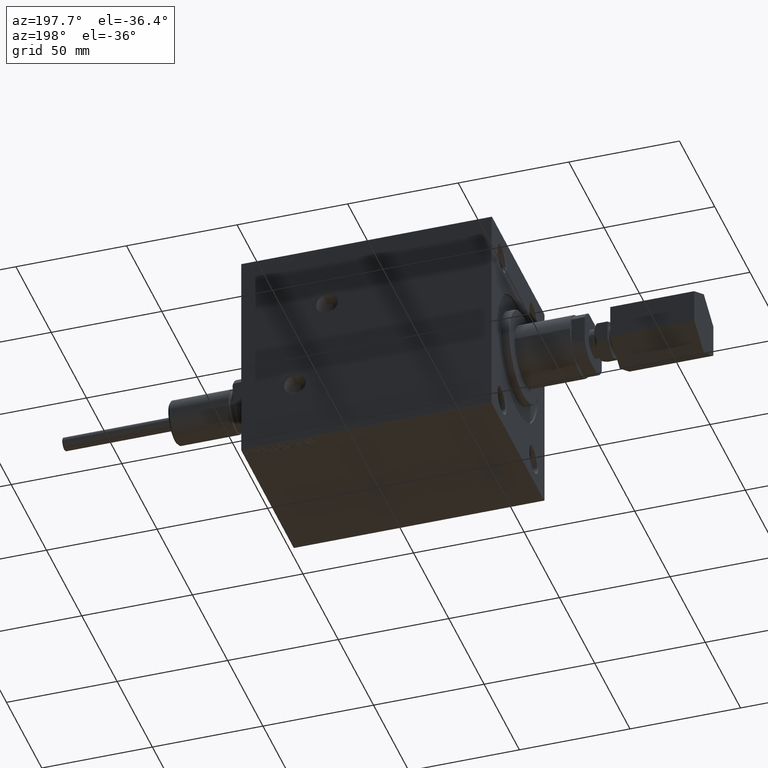
[diagram: clean part render]
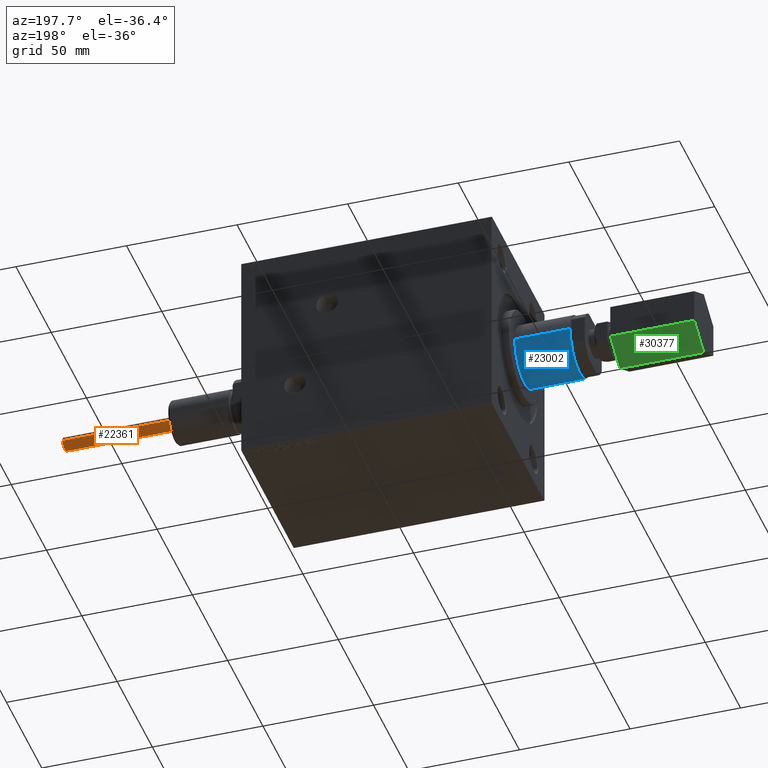
[diagram: same view with three faces highlighted in distinct colors, each labeled with its STEP entity id]
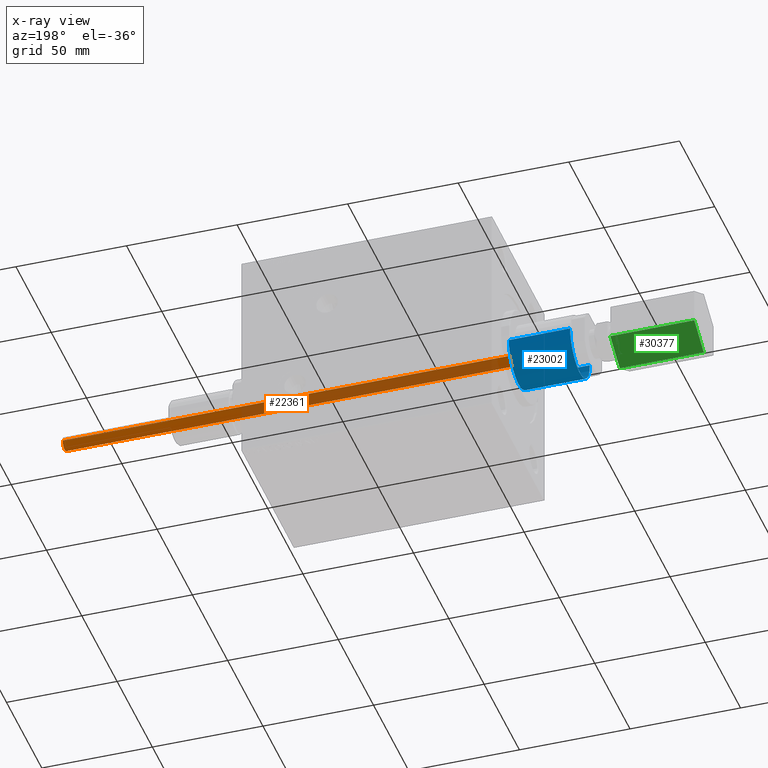
[diagram: x-ray of the same camera — body ghosted, the three highlighted faces saturated]
A machine part, auxiliary view with three faces highlighted in distinct colors.
The next image is the same camera in x-ray (body ghosted, the three faces saturated) — at least one of them is partly hidden behind the body in this view.
Their STEP definitions:

[orange] entity #22361 — the highlighted cylindrical surface (edge-blend (fillet) strip) has radius 3 mm, axis along (-1, 0, 0).
#97 = CARTESIAN_POINT ( 'NONE',  ( 0.000000000000000000, 0.000000000000000000, -2.999999999999999556 ) ) ;
#541 = DIRECTION ( 'NONE',  ( 1.000000000000000000, -0.000000000000000000, -0.000000000000000000 ) ) ;
#1107 = LINE ( 'NONE', #33809, #3805 ) ;
#2545 = ORIENTED_EDGE ( 'NONE', *, *, #44125, .T. ) ;
#2677 = AXIS2_PLACEMENT_3D ( 'NONE', #23001, #37663, #3782 ) ;
#3064 = AXIS2_PLACEMENT_3D ( 'NONE', #37611, #12388, #19372 ) ;
#3198 = CIRCLE ( 'NONE', #42363, 2.999999999999999556 ) ;
#3782 = DIRECTION ( 'NONE',  ( 0.000000000000000000, 0.000000000000000000, -1.000000000000000000 ) ) ;
#3805 = VECTOR ( 'NONE', #4961, 1000.000000000000000 ) ;
#4961 = DIRECTION ( 'NONE',  ( 1.000000000000000000, -0.000000000000000000, -0.000000000000000000 ) ) ;
#6970 = CARTESIAN_POINT ( 'NONE',  ( -204.9000000000000341, 0.000000000000000000, -2.999999999999999556 ) ) ;
#7798 = VERTEX_POINT ( 'NONE', #6970 ) ;
#8085 = EDGE_CURVE ( 'NONE', #7798, #16380, #1107, .T. ) ;
#8434 = ORIENTED_EDGE ( 'NONE', *, *, #8085, .F. ) ;
#8879 = ORIENTED_EDGE ( 'NONE', *, *, #9750, .T. ) ;
#9750 = EDGE_CURVE ( 'NONE', #7798, #10255, #46056, .T. ) ;
#9816 = DIRECTION ( 'NONE',  ( -1.000000000000000000, 0.000000000000000000, 0.000000000000000000 ) ) ;
#10255 = VERTEX_POINT ( 'NONE', #18776 ) ;
#10798 = VECTOR ( 'NONE', #541, 1000.000000000000000 ) ;
#12388 = DIRECTION ( 'NONE',  ( 1.000000000000000000, 0.000000000000000000, 0.000000000000000000 ) ) ;
#12530 = CARTESIAN_POINT ( 'NONE',  ( 0.000000000000000000, 3.673940397442059375E-16, 2.999999999999999556 ) ) ;
#12706 = CARTESIAN_POINT ( 'NONE',  ( 0.000000000000000000, 0.000000000000000000, 0.000000000000000000 ) ) ;
#14133 = EDGE_CURVE ( 'NONE', #38783, #16380, #3198, .T. ) ;
#16380 = VERTEX_POINT ( 'NONE', #97 ) ;
#18776 = CARTESIAN_POINT ( 'NONE',  ( -204.9000000000000341, 3.673940397442059375E-16, 2.999999999999999556 ) ) ;
#19372 = DIRECTION ( 'NONE',  ( 0.000000000000000000, 0.000000000000000000, 1.000000000000000000 ) ) ;
#19424 = CYLINDRICAL_SURFACE ( 'NONE', #2677, 2.999999999999999556 ) ;
#22361 = ADVANCED_FACE ( 'NONE', ( #44641 ), #19424, .T. ) ;
#22661 = CARTESIAN_POINT ( 'NONE',  ( -205.1999999999999886, 3.673940397442059375E-16, 2.999999999999999556 ) ) ;
#23001 = CARTESIAN_POINT ( 'NONE',  ( -205.1999999999999886, 0.000000000000000000, 0.000000000000000000 ) ) ;
#25439 = ORIENTED_EDGE ( 'NONE', *, *, #14133, .T. ) ;
#33809 = CARTESIAN_POINT ( 'NONE',  ( -205.1999999999999886, 0.000000000000000000, -2.999999999999999556 ) ) ;
#33949 = LINE ( 'NONE', #22661, #10798 ) ;
#35041 = DIRECTION ( 'NONE',  ( 0.000000000000000000, 0.000000000000000000, 1.000000000000000000 ) ) ;
#36709 = EDGE_LOOP ( 'NONE', ( #8879, #2545, #25439, #8434 ) ) ;
#37611 = CARTESIAN_POINT ( 'NONE',  ( -204.9000000000000341, 0.000000000000000000, 0.000000000000000000 ) ) ;
#37663 = DIRECTION ( 'NONE',  ( 1.000000000000000000, -0.000000000000000000, -0.000000000000000000 ) ) ;
#38783 = VERTEX_POINT ( 'NONE', #12530 ) ;
#42363 = AXIS2_PLACEMENT_3D ( 'NONE', #12706, #9816, #35041 ) ;
#44125 = EDGE_CURVE ( 'NONE', #10255, #38783, #33949, .T. ) ;
#44641 = FACE_OUTER_BOUND ( 'NONE', #36709, .T. ) ;
#46056 = CIRCLE ( 'NONE', #3064, 2.999999999999999556 ) ;

[blue] entity #23002 — the highlighted cylindrical surface (edge-blend (fillet) strip) has radius 14 mm, axis along (1, 0, 0).
#1603 = DIRECTION ( 'NONE',  ( -1.000000000000000000, -0.000000000000000000, -0.000000000000000000 ) ) ;
#2542 = DIRECTION ( 'NONE',  ( 0.000000000000000000, 0.000000000000000000, -1.000000000000000000 ) ) ;
#3013 = DIRECTION ( 'NONE',  ( 1.000000000000000000, 0.000000000000000000, 0.000000000000000000 ) ) ;
#3467 = FACE_OUTER_BOUND ( 'NONE', #27600, .T. ) ;
#3563 = CARTESIAN_POINT ( 'NONE',  ( 28.00000000000000000, 1.714505518806294441E-15, -13.99999999999999822 ) ) ;
#3601 = VERTEX_POINT ( 'NONE', #6338 ) ;
#6086 = VECTOR ( 'NONE', #33995, 1000.000000000000000 ) ;
#6338 = CARTESIAN_POINT ( 'NONE',  ( 28.00000000000000000, 0.000000000000000000, 13.99999999999999822 ) ) ;
#6994 = EDGE_CURVE ( 'NONE', #43885, #3601, #13790, .T. ) ;
#13658 = CARTESIAN_POINT ( 'NONE',  ( 0.3000000000000120348, 0.000000000000000000, 0.000000000000000000 ) ) ;
#13790 = CIRCLE ( 'NONE', #22958, 13.99999999999999822 ) ;
#15165 = CIRCLE ( 'NONE', #42026, 13.99999999999999822 ) ;
#16977 = CARTESIAN_POINT ( 'NONE',  ( 28.00000000000000000, 0.000000000000000000, 0.000000000000000000 ) ) ;
#17524 = ORIENTED_EDGE ( 'NONE', *, *, #42649, .F. ) ;
#17750 = CARTESIAN_POINT ( 'NONE',  ( 0.3000000000000120348, 0.000000000000000000, 13.99999999999999822 ) ) ;
#18537 = CARTESIAN_POINT ( 'NONE',  ( 28.00000000000000000, 0.000000000000000000, 13.99999999999999822 ) ) ;
#19237 = VERTEX_POINT ( 'NONE', #19919 ) ;
#19366 = CARTESIAN_POINT ( 'NONE',  ( 28.00000000000000000, 1.714505518806294441E-15, -13.99999999999999822 ) ) ;
#19919 = CARTESIAN_POINT ( 'NONE',  ( 0.3000000000000120348, 1.714505518806294441E-15, -13.99999999999999822 ) ) ;
#19960 = VECTOR ( 'NONE', #1603, 1000.000000000000000 ) ;
#21210 = VERTEX_POINT ( 'NONE', #17750 ) ;
#21277 = CARTESIAN_POINT ( 'NONE',  ( 28.00000000000000000, 0.000000000000000000, 0.000000000000000000 ) ) ;
#22943 = LINE ( 'NONE', #19366, #6086 ) ;
#22958 = AXIS2_PLACEMENT_3D ( 'NONE', #16977, #3013, #2542 ) ;
#23002 = ADVANCED_FACE ( 'NONE', ( #3467 ), #31847, .T. ) ;
#23254 = LINE ( 'NONE', #18537, #19960 ) ;
#24935 = DIRECTION ( 'NONE',  ( 1.000000000000000000, -0.000000000000000000, -0.000000000000000000 ) ) ;
#27600 = EDGE_LOOP ( 'NONE', ( #45445, #43402, #42343, #17524 ) ) ;
#31847 = CYLINDRICAL_SURFACE ( 'NONE', #34923, 13.99999999999999822 ) ;
#32571 = EDGE_CURVE ( 'NONE', #19237, #21210, #15165, .T. ) ;
#33995 = DIRECTION ( 'NONE',  ( -1.000000000000000000, -0.000000000000000000, -0.000000000000000000 ) ) ;
#34923 = AXIS2_PLACEMENT_3D ( 'NONE', #21277, #39531, #47455 ) ;
#39531 = DIRECTION ( 'NONE',  ( -1.000000000000000000, -0.000000000000000000, -0.000000000000000000 ) ) ;
#39586 = DIRECTION ( 'NONE',  ( 0.000000000000000000, 0.000000000000000000, -1.000000000000000000 ) ) ;
#42026 = AXIS2_PLACEMENT_3D ( 'NONE', #13658, #24935, #39586 ) ;
#42074 = EDGE_CURVE ( 'NONE', #43885, #19237, #22943, .T. ) ;
#42343 = ORIENTED_EDGE ( 'NONE', *, *, #32571, .T. ) ;
#42649 = EDGE_CURVE ( 'NONE', #3601, #21210, #23254, .T. ) ;
#43402 = ORIENTED_EDGE ( 'NONE', *, *, #42074, .T. ) ;
#43885 = VERTEX_POINT ( 'NONE', #3563 ) ;
#45445 = ORIENTED_EDGE ( 'NONE', *, *, #6994, .F. ) ;
#47455 = DIRECTION ( 'NONE',  ( 0.000000000000000000, 0.000000000000000000, 1.000000000000000000 ) ) ;

[green] entity #30377 — the highlighted planar face has unit normal (0, -0.5, 0.866).
#742 = VERTEX_POINT ( 'NONE', #19899 ) ;
#1028 = EDGE_CURVE ( 'NONE', #742, #7936, #40227, .T. ) ;
#2106 = VECTOR ( 'NONE', #38881, 1000.000000000000114 ) ;
#2680 = EDGE_CURVE ( 'NONE', #742, #46650, #25931, .T. ) ;
#4007 = EDGE_LOOP ( 'NONE', ( #15515, #14207, #43289, #26015 ) ) ;
#6002 = VERTEX_POINT ( 'NONE', #26989 ) ;
#6374 = DIRECTION ( 'NONE',  ( -1.000000000000000000, -0.000000000000000000, -0.000000000000000000 ) ) ;
#7056 = DIRECTION ( 'NONE',  ( -1.000000000000000000, -0.000000000000000000, -0.000000000000000000 ) ) ;
#7936 = VERTEX_POINT ( 'NONE', #18990 ) ;
#8238 = VECTOR ( 'NONE', #40354, 1000.000000000000114 ) ;
#8852 = CARTESIAN_POINT ( 'NONE',  ( 46.00000000000000711, 7.794228634059952476, -13.49999999999999822 ) ) ;
#11261 = VECTOR ( 'NONE', #6374, 1000.000000000000000 ) ;
#13313 = DIRECTION ( 'NONE',  ( 0.000000000000000000, -0.4999999999999997224, -0.8660254037844388186 ) ) ;
#14207 = ORIENTED_EDGE ( 'NONE', *, *, #29974, .F. ) ;
#15515 = ORIENTED_EDGE ( 'NONE', *, *, #32399, .T. ) ;
#16920 = FACE_OUTER_BOUND ( 'NONE', #4007, .T. ) ;
#18990 = CARTESIAN_POINT ( 'NONE',  ( 46.00000000000000711, 7.794228634059952476, -13.49999999999999822 ) ) ;
#19899 = CARTESIAN_POINT ( 'NONE',  ( 84.00000000000000000, 7.794228634059952476, -13.49999999999999822 ) ) ;
#20634 = CARTESIAN_POINT ( 'NONE',  ( 84.00000000000000000, 15.58845726811989252, 0.000000000000000000 ) ) ;
#20816 = LINE ( 'NONE', #38826, #11261 ) ;
#25931 = LINE ( 'NONE', #29534, #8238 ) ;
#26015 = ORIENTED_EDGE ( 'NONE', *, *, #1028, .T. ) ;
#26989 = CARTESIAN_POINT ( 'NONE',  ( 46.00000000000000711, 15.58845726811989252, 0.000000000000000000 ) ) ;
#27717 = DIRECTION ( 'NONE',  ( 0.000000000000000000, -0.8660254037844388186, 0.4999999999999997224 ) ) ;
#27955 = PLANE ( 'NONE',  #47333 ) ;
#29534 = CARTESIAN_POINT ( 'NONE',  ( 84.00000000000000000, 7.794228634059952476, -13.49999999999999822 ) ) ;
#29974 = EDGE_CURVE ( 'NONE', #46650, #6002, #20816, .T. ) ;
#30377 = ADVANCED_FACE ( 'NONE', ( #16920 ), #27955, .F. ) ;
#30953 = LINE ( 'NONE', #8852, #2106 ) ;
#31948 = VECTOR ( 'NONE', #7056, 1000.000000000000000 ) ;
#32399 = EDGE_CURVE ( 'NONE', #7936, #6002, #30953, .T. ) ;
#34693 = CARTESIAN_POINT ( 'NONE',  ( 84.00000000000000000, 7.794228634059952476, -13.49999999999999822 ) ) ;
#38826 = CARTESIAN_POINT ( 'NONE',  ( 84.00000000000000000, 15.58845726811989252, 0.000000000000000000 ) ) ;
#38881 = DIRECTION ( 'NONE',  ( 0.000000000000000000, 0.4999999999999996669, 0.8660254037844388186 ) ) ;
#39986 = CARTESIAN_POINT ( 'NONE',  ( 84.00000000000000000, 7.794228634059952476, -13.49999999999999822 ) ) ;
#40227 = LINE ( 'NONE', #39986, #31948 ) ;
#40354 = DIRECTION ( 'NONE',  ( 0.000000000000000000, 0.4999999999999996669, 0.8660254037844388186 ) ) ;
#43289 = ORIENTED_EDGE ( 'NONE', *, *, #2680, .F. ) ;
#46650 = VERTEX_POINT ( 'NONE', #20634 ) ;
#47333 = AXIS2_PLACEMENT_3D ( 'NONE', #34693, #27717, #13313 ) ;